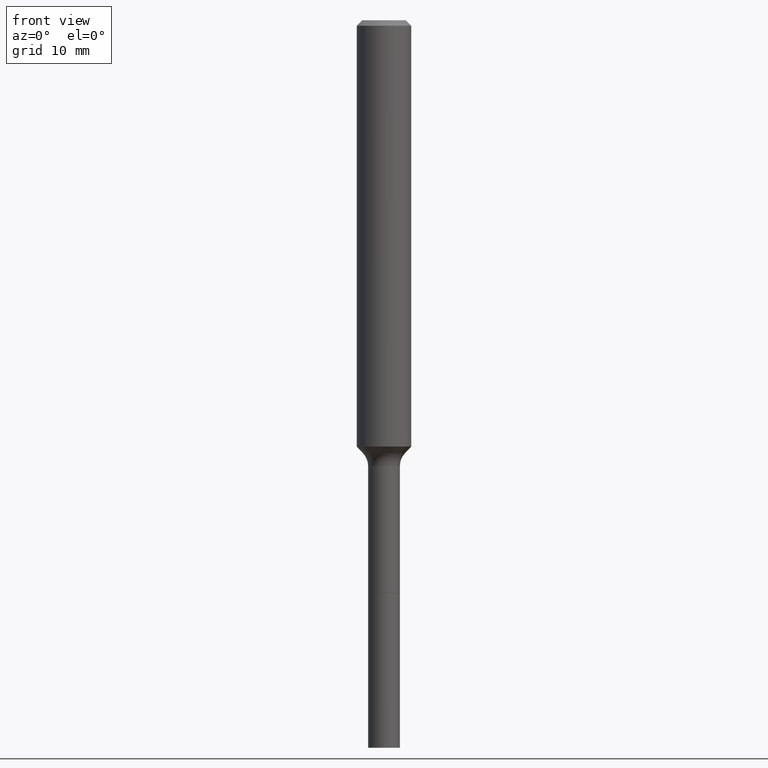
[diagram: clean part render]
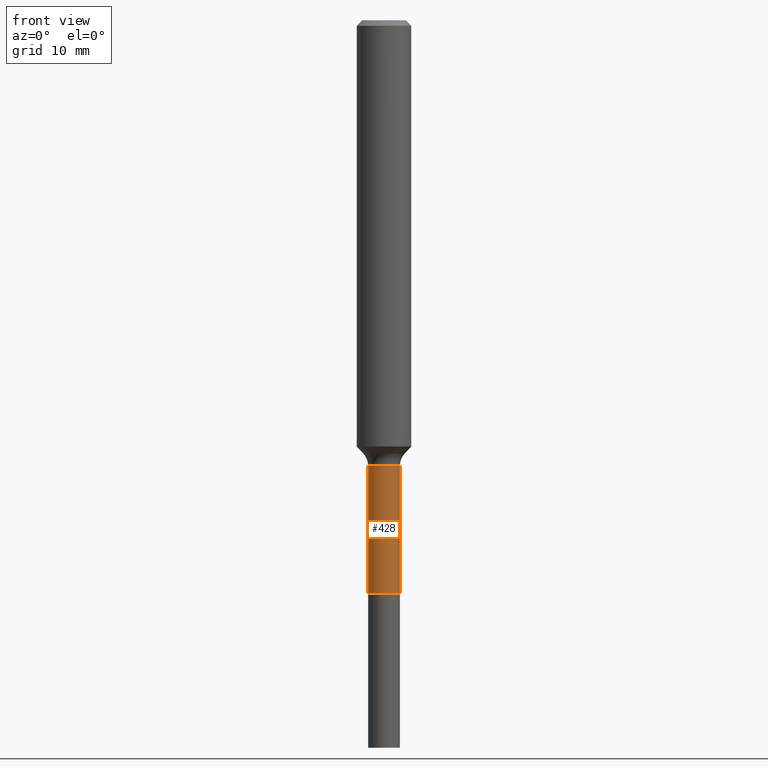
[diagram: same view with one face highlighted and labeled with its STEP entity id]
A machine part, front view. The second image highlights one B-rep face of the part: STEP entity #428.
In plain terms, the highlighted cylindrical surface (edge-blend (fillet) strip) has radius 1.7501 mm, axis along (-0, 0, 1).
Its self-contained STEP definition (entity closure, byte-faithful):
#2 = VERTEX_POINT ( 'NONE', #495 ) ;
#31 = CARTESIAN_POINT ( 'NONE',  ( 0.06889999999999993352, -7.218288519924316946E-15, -1.929599999999999982 ) ) ;
#51 = DIRECTION ( 'NONE',  ( 1.000000000000000000, -6.982962677686278543E-15, 0.000000000000000000 ) ) ;
#72 = LINE ( 'NONE', #339, #198 ) ;
#97 = ORIENTED_EDGE ( 'NONE', *, *, #244, .F. ) ;
#103 = DIRECTION ( 'NONE',  ( -2.445468806185136597E-29, 3.491481338843145583E-15, 1.000000000000000000 ) ) ;
#122 = ORIENTED_EDGE ( 'NONE', *, *, #317, .T. ) ;
#150 = CARTESIAN_POINT ( 'NONE',  ( 0.000000000000000000, 0.000000000000000000, 0.000000000000000000 ) ) ;
#158 = DIRECTION ( 'NONE',  ( 1.000000000000000000, -6.982962677686273021E-15, 0.000000000000000000 ) ) ;
#163 = ORIENTED_EDGE ( 'NONE', *, *, #441, .F. ) ;
#169 = EDGE_CURVE ( 'NONE', #2, #210, #245, .T. ) ;
#194 = FACE_OUTER_BOUND ( 'NONE', #286, .T. ) ;
#198 = VECTOR ( 'NONE', #261, 39.37007874015748143 ) ;
#210 = VERTEX_POINT ( 'NONE', #31 ) ;
#238 = VECTOR ( 'NONE', #397, 39.37007874015748143 ) ;
#242 = CIRCLE ( 'NONE', #319, 0.06889999999999993352 ) ;
#244 = EDGE_CURVE ( 'NONE', #513, #284, #72, .T. ) ;
#245 = LINE ( 'NONE', #438, #238 ) ;
#261 = DIRECTION ( 'NONE',  ( -2.445468806185136877E-29, 3.491481338843145188E-15, 1.000000000000000000 ) ) ;
#267 = CARTESIAN_POINT ( 'NONE',  ( -0.06890000000000001679, -7.208628685009600429E-15, -2.480100000000000193 ) ) ;
#272 = DIRECTION ( 'NONE',  ( 1.000000000000000000, -6.982962677686267499E-15, 4.876176775795935793E-29 ) ) ;
#284 = VERTEX_POINT ( 'NONE', #417 ) ;
#286 = EDGE_LOOP ( 'NONE', ( #97, #122, #448, #163 ) ) ;
#309 = AXIS2_PLACEMENT_3D ( 'NONE', #493, #103, #51 ) ;
#317 = EDGE_CURVE ( 'NONE', #513, #2, #374, .T. ) ;
#319 = AXIS2_PLACEMENT_3D ( 'NONE', #387, #507, #158 ) ;
#339 = CARTESIAN_POINT ( 'NONE',  ( -0.06889999999999997515, 4.895639449387088515E-16, -3.389146277185628616E-30 ) ) ;
#348 = CYLINDRICAL_SURFACE ( 'NONE', #458, 0.06889999999999997515 ) ;
#374 = CIRCLE ( 'NONE', #309, 0.06890000000000001679 ) ;
#387 = CARTESIAN_POINT ( 'NONE',  ( 4.718776608414840041E-29, -6.737162391431733996E-15, -1.929599999999999982 ) ) ;
#397 = DIRECTION ( 'NONE',  ( -2.445468806185136877E-29, 3.491481338843145188E-15, 1.000000000000000000 ) ) ;
#417 = CARTESIAN_POINT ( 'NONE',  ( -0.06889999999999993352, -7.208628685009600429E-15, -1.929599999999999982 ) ) ;
#428 = ADVANCED_FACE ( 'NONE', ( #194 ), #348, .T. ) ;
#438 = CARTESIAN_POINT ( 'NONE',  ( 0.06889999999999997515, -4.811261284925836399E-16, 3.359685798523398567E-30 ) ) ;
#441 = EDGE_CURVE ( 'NONE', #284, #210, #242, .T. ) ;
#448 = ORIENTED_EDGE ( 'NONE', *, *, #169, .T. ) ;
#458 = AXIS2_PLACEMENT_3D ( 'NONE', #150, #462, #272 ) ;
#462 = DIRECTION ( 'NONE',  ( -2.445468806185136597E-29, 3.491481338843145583E-15, 1.000000000000000000 ) ) ;
#493 = CARTESIAN_POINT ( 'NONE',  ( 6.065007186219757186E-29, -8.659222868464885156E-15, -2.480100000000000193 ) ) ;
#495 = CARTESIAN_POINT ( 'NONE',  ( 0.06890000000000001679, -9.140348996957470473E-15, -2.480100000000000193 ) ) ;
#507 = DIRECTION ( 'NONE',  ( -2.445468806185136597E-29, 3.491481338843145583E-15, 1.000000000000000000 ) ) ;
#513 = VERTEX_POINT ( 'NONE', #267 ) ;